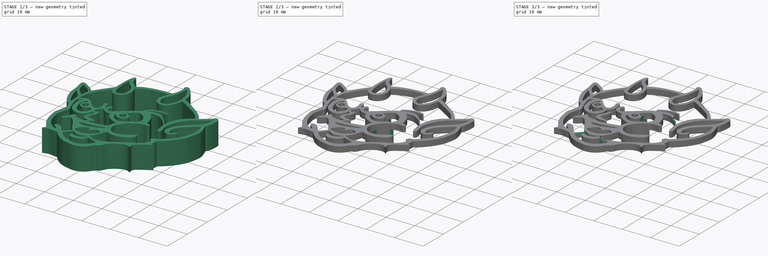
[diagram: build sequence overview — one tinted view per stage of 3, left to right]
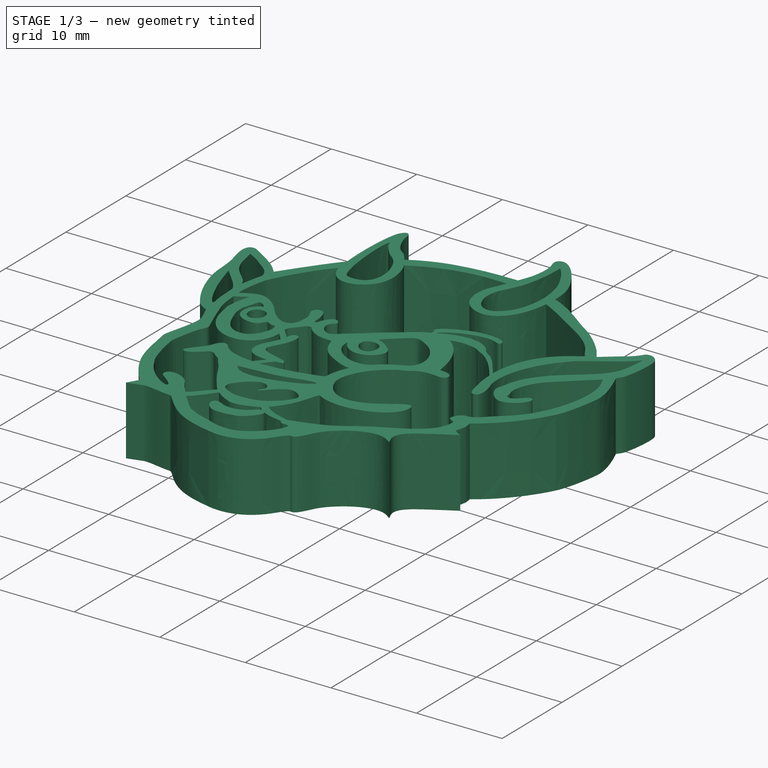
[diagram: stage 1 of 3 — iso view after this stage's code; geometry added in this stage tinted green]
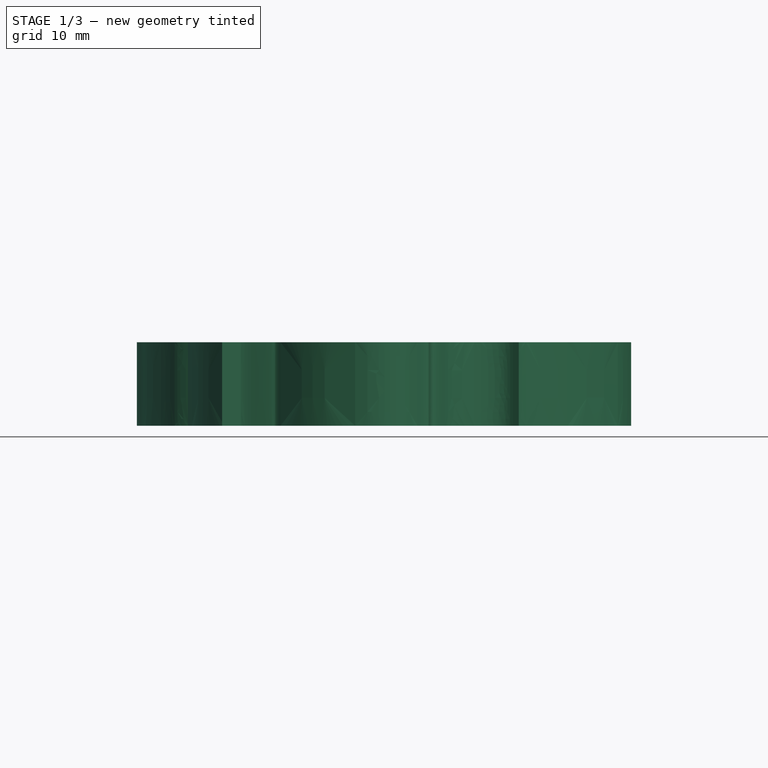
[diagram: stage 1 of 3 — front view after this stage's code; geometry added in this stage tinted green]
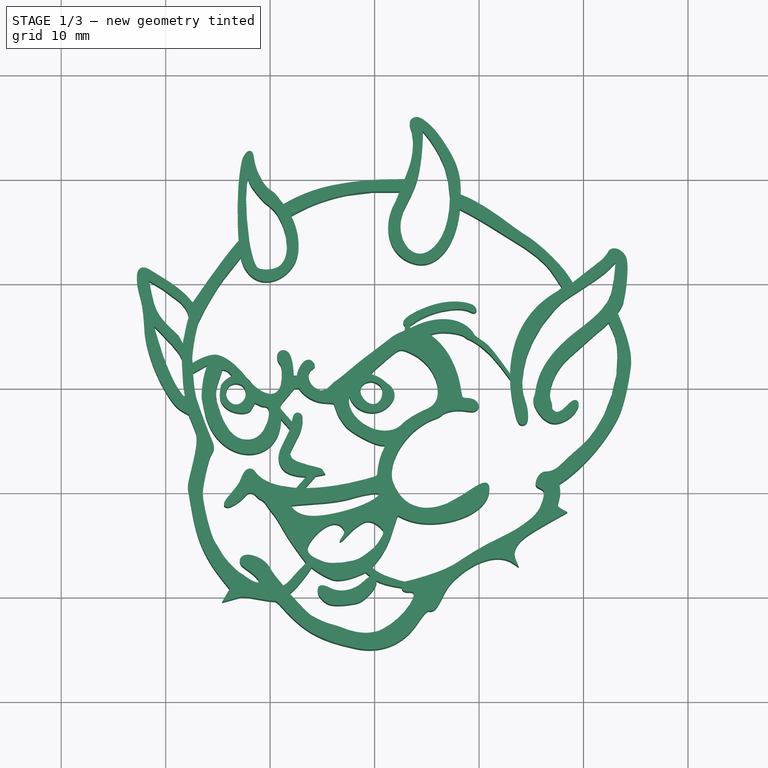
[diagram: stage 1 of 3 — top view after this stage's code; geometry added in this stage tinted green]
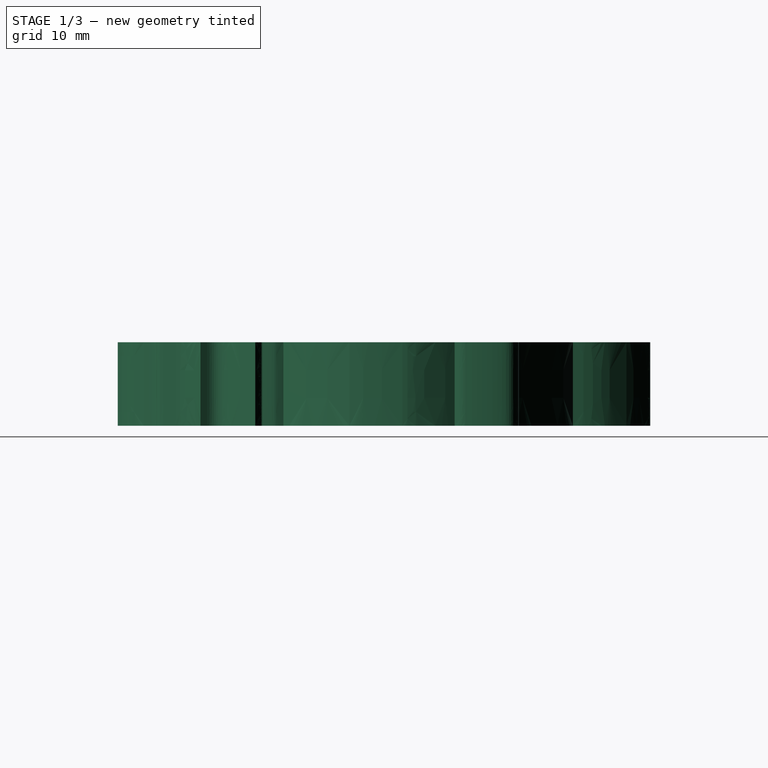
[diagram: stage 1 of 3 — right view after this stage's code; geometry added in this stage tinted green]
FCSTD DOCUMENT  (FreeCAD 0.22R37668 (Git))
Label: devil
License: Creative Commons Attribution-ShareAlike 3.0
LicenseURL: https://creativecommons.org/licenses/by-sa/3.0/
objects: Part::Feature×18, Sketcher::SketchObject×3, PartDesign::Pocket×3, Part::MultiFuse×1, Part::Cut×1, Part::Extrusion×1, PartDesign::FeatureBase×1, PartDesign::Body×1
note: 32 computed .brp shape members not serialized (recipe doc carries the construction recipe); baked Part::Feature solids carry a one-line shape summary decoded from their .brp

FEATURE [Part::Feature] path2
  shape: bbox 8.083 x 7 x 2.242e-07 mm, 1 faces, 0 solids (baked)
FEATURE [Part::Feature] path1
  Placement = pos=(55,-40,0) rot=(0,0,1;0rad)
  shape: bbox 59.62 x 65.19 x 2e-07 mm, 0 faces, 0 solids (baked)
FEATURE [Part::Feature] path17
  shape: bbox 47.59 x 51.36 x 2e-07 mm, 1 faces, 0 solids (baked)
FEATURE [Part::Feature] path018
  shape: bbox 4.959 x 11.77 x 2e-07 mm, 1 faces, 0 solids (baked)
FEATURE [Part::Feature] path019
  shape: bbox 3.98 x 8.726 x 2e-07 mm, 1 faces, 0 solids (baked)
FEATURE [Part::Feature] path020
  shape: bbox 35.43 x 19.38 x 2e-07 mm, 1 faces, 0 solids (baked)
FEATURE [Part::Feature] path021
  shape: bbox 23.72 x 30.57 x 2e-07 mm, 1 faces, 0 solids (baked)
FEATURE [Part::Feature] path022
  shape: bbox 3.784 x 5.981 x 2e-07 mm, 1 faces, 0 solids (baked)
FEATURE [Part::Feature] path023
  shape: bbox 3.277 x 7.271 x 2e-07 mm, 1 faces, 0 solids (baked)
FEATURE [Part::Feature] path024
  shape: bbox 8.642 x 7.9 x 2e-07 mm, 1 faces, 0 solids (baked)
FEATURE [Part::Feature] path025
  shape: bbox 10.85 x 21.1 x 2e-07 mm, 1 faces, 0 solids (baked)
FEATURE [Part::Feature] path026
  shape: bbox 5.285 x 6.958 x 2e-07 mm, 1 faces, 0 solids (baked)
FEATURE [Part::Feature] path027
  shape: bbox 2.209 x 2.271 x 2e-07 mm, 1 faces, 0 solids (baked)
FEATURE [Part::Feature] path028
  shape: bbox 1.875 x 2.027 x 2e-07 mm, 1 faces, 0 solids (baked)
FEATURE [Part::Feature] path029
  shape: bbox 10 x 9.583 x 2e-07 mm, 1 faces, 0 solids (baked)
FEATURE [Part::Feature] path030
  shape: bbox 8.489 x 2.222 x 2e-07 mm, 1 faces, 0 solids (baked)
FEATURE [Part::Feature] path031
  shape: bbox 7.297 x 4.078 x 2e-07 mm, 1 faces, 0 solids (baked)
FEATURE [Part::Feature] path032
  shape: bbox 11.88 x 6.411 x 2e-07 mm, 1 faces, 0 solids (baked)
FEATURE [Part::MultiFuse] Fusion
  Shapes = -> [path032,path031,path030,path029,path028,path027,path026,path025,path024,path023,path022,path021,path020,path019,path018]
FEATURE [Part::Cut] Cut
  Base = -> path17
  Tool = -> Fusion
FEATURE [Part::Extrusion] Extrude
  Base = -> Cut
  Dir = (0,0,1)
  DirMode = 0
  FaceMakerClass = Part::FaceMakerBullseye
  FaceMakerMode = 3
  LengthFwd = 8
  LengthRev = 0
  Solid = false
  Symmetric = false
FEATURE [PartDesign::FeatureBase] BaseFeature
  BaseFeature = -> Extrude
  Suppressed = false
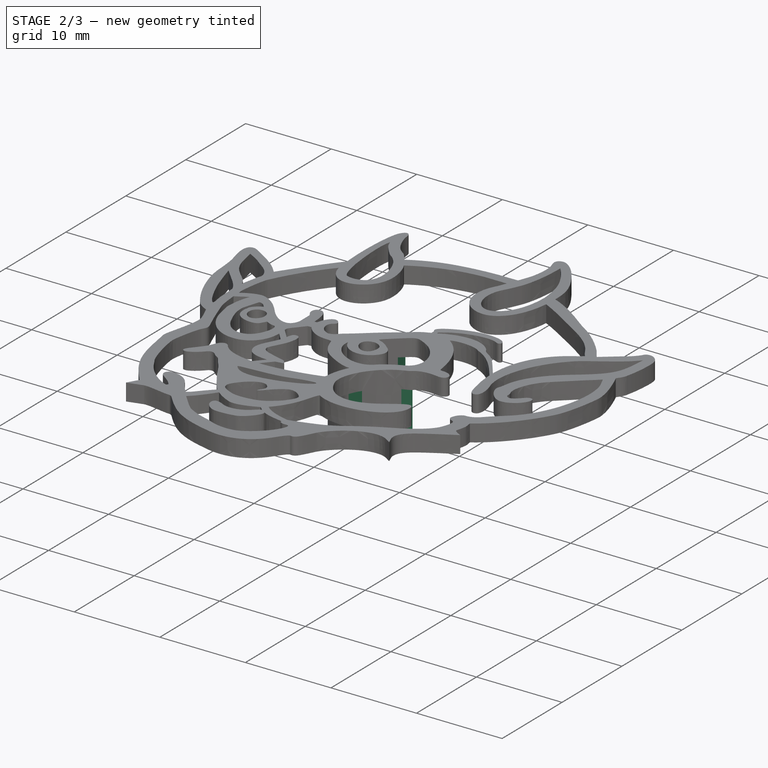
[diagram: stage 2 of 3 — iso view after this stage's code; geometry added in this stage tinted green]
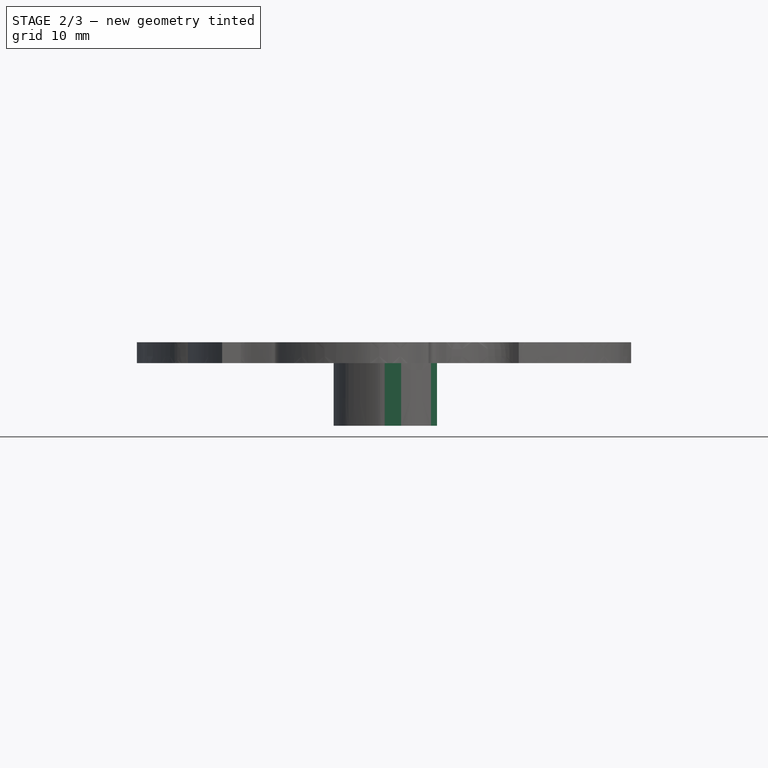
[diagram: stage 2 of 3 — front view after this stage's code; geometry added in this stage tinted green]
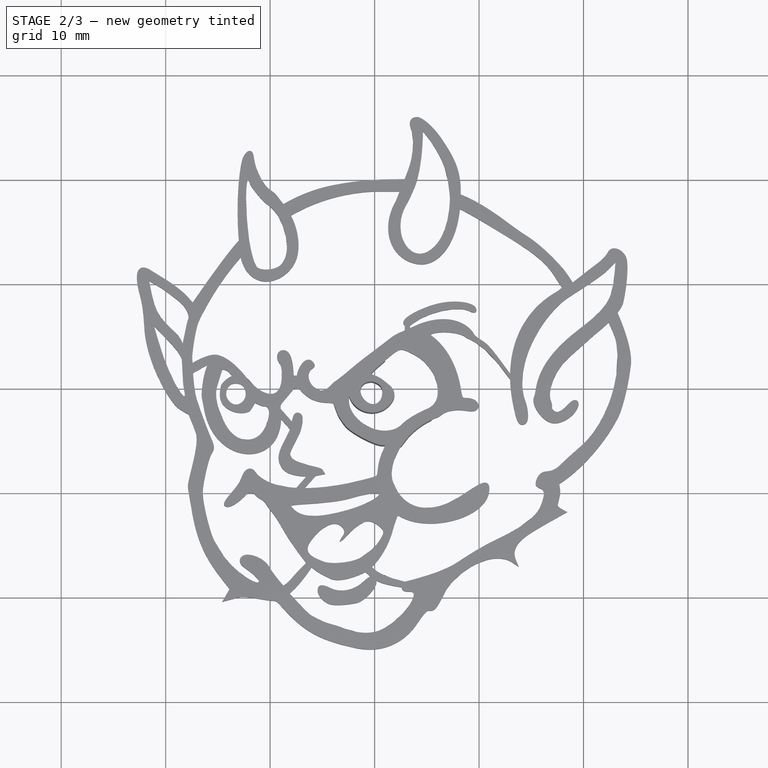
[diagram: stage 2 of 3 — top view after this stage's code; geometry added in this stage tinted green]
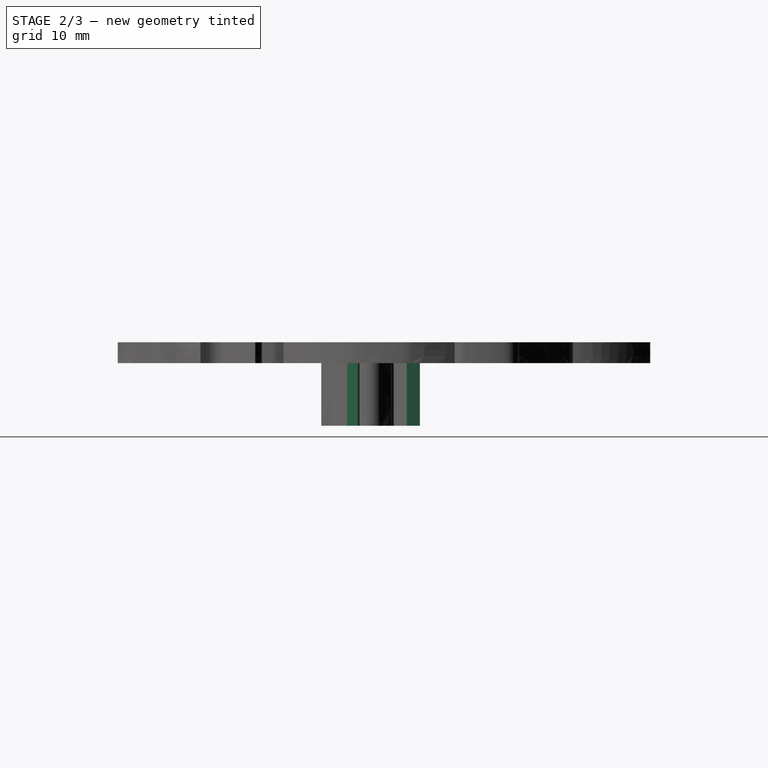
[diagram: stage 2 of 3 — right view after this stage's code; geometry added in this stage tinted green]
FEATURE [Sketcher::SketchObject] Sketch
  AttachmentOffset = pos=(31,-31,6) rot=(0,0,1;0rad)
  AttachmentSupport = -> [XY_Plane]
  FullyConstrained = false
  MapMode = 5
  Placement = pos=(31,-31,6) rot=(0,0,1;0rad)
  Support = -> [XY_Plane]
  sketch-geometry (14):
    g0: Circle CenterX=0 CenterY=0 CenterZ=0 NormalX=0 NormalY=0 NormalZ=1 AngleXU=0 Radius=30
    g1: LineSegment StartX=-1.56676 StartY=-4.59502 StartZ=0 EndX=-4.92167 EndY=-2.95228 EndZ=0
    g2: LineSegment StartX=-4.92167 StartY=-2.95228 StartZ=0 EndX=-4.92167 EndY=0.941894 EndZ=0
    g3: LineSegment StartX=-4.92167 StartY=0.941894 StartZ=0 EndX=-2.96146 EndY=4.33707 EndZ=0
    g4: LineSegment StartX=-2.96146 StartY=4.33707 StartZ=0 EndX=-1.91382 EndY=4.84499 EndZ=0
    g5: LineSegment StartX=-1.91382 StartY=4.84499 StartZ=0 EndX=0 EndY=4.84499 EndZ=0
    g6: LineSegment StartX=0 StartY=4.84499 StartZ=0 EndX=0 EndY=3.52616 EndZ=0
    g7: LineSegment StartX=0 StartY=3.52616 StartZ=0 EndX=2.25089 EndY=3.52616 EndZ=0
    g8: LineSegment StartX=3.73583 StartY=-3.24673 StartZ=0 EndX=2.11437 EndY=-4.59502 EndZ=0
    g9: LineSegment StartX=2.11437 StartY=-4.59502 StartZ=0 EndX=-1.56676 EndY=-4.59502 EndZ=0
    g10: LineSegment StartX=3.82308 StartY=-0.840063 StartZ=0 EndX=4.97871 EndY=-1.094 EndZ=0
    g11: LineSegment StartX=4.97871 StartY=-1.094 StartZ=0 EndX=3.73583 EndY=-3.24673 EndZ=0
    g12: LineSegment StartX=2.25089 StartY=3.52616 StartZ=0 EndX=4.34898 EndY=0.0708364 EndZ=0
    g13: LineSegment StartX=4.34898 StartY=0.0708364 StartZ=0 EndX=3.82308 EndY=-0.840063 EndZ=0
  constraints (25):
    c: Coincident(g3,g4)
    c: Coincident(g7,g12)
    c: Coincident(g13,g10)
    c: Coincident(g11,g8)
    c: Diameter(g0) = 60
    c: Coincident(g0,g-1)
    c: Coincident(g1,g2)
    c: Coincident(g2,g3)
    c: Coincident(g4,g5)
    c: Coincident(g5,g6)
    c: Coincident(g6,g7)
    c: Coincident(g8,g9)
    c: Coincident(g10,g11)
    c: Coincident(g12,g13)
    c: Horizontal(g9)
    c: PointOnObject(g0,g10)
    c: Angle(g11) = -2.0944
    c: Parallel(g11,g13)
    c: Horizontal(g7)
    c: Vertical(g6)
    c: PointOnObject(g5,g-2)
    c: Horizontal(g5)
    c: Parallel(g3,g11)
    c: Vertical(g2)
    c: Coincident(g9,g1)
FEATURE [PartDesign::Pocket] Pocket
  BaseFeature = -> BaseFeature
  Direction = (0,0,-1)
  Length = 5
  Length2 = 5
  Profile = -> Sketch
  ReferenceAxis = -> Sketch [N_Axis]
  Refine = true
  Suppressed = false
  Type = 1
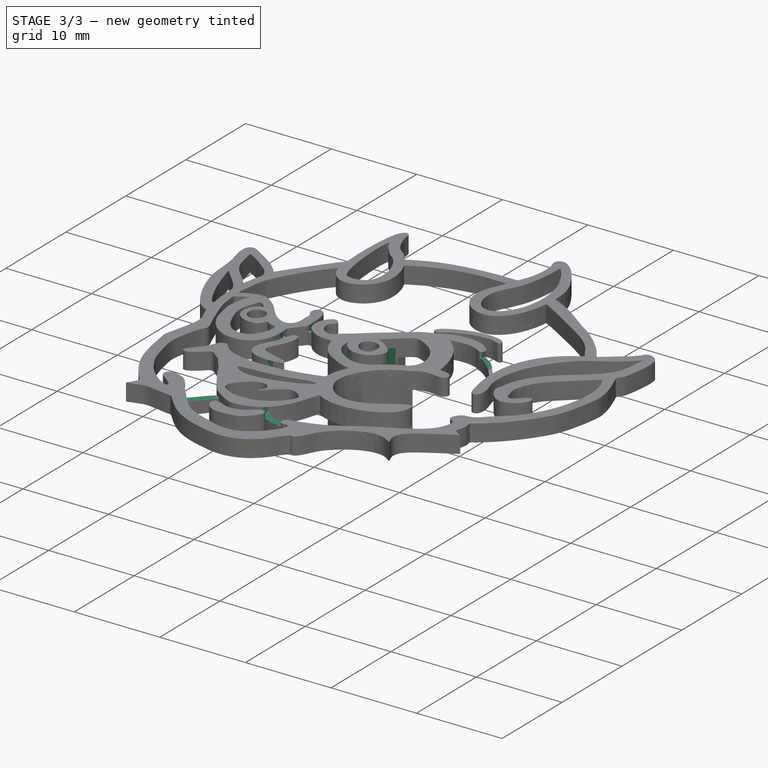
[diagram: stage 3 of 3 — iso view after this stage's code; geometry added in this stage tinted green]
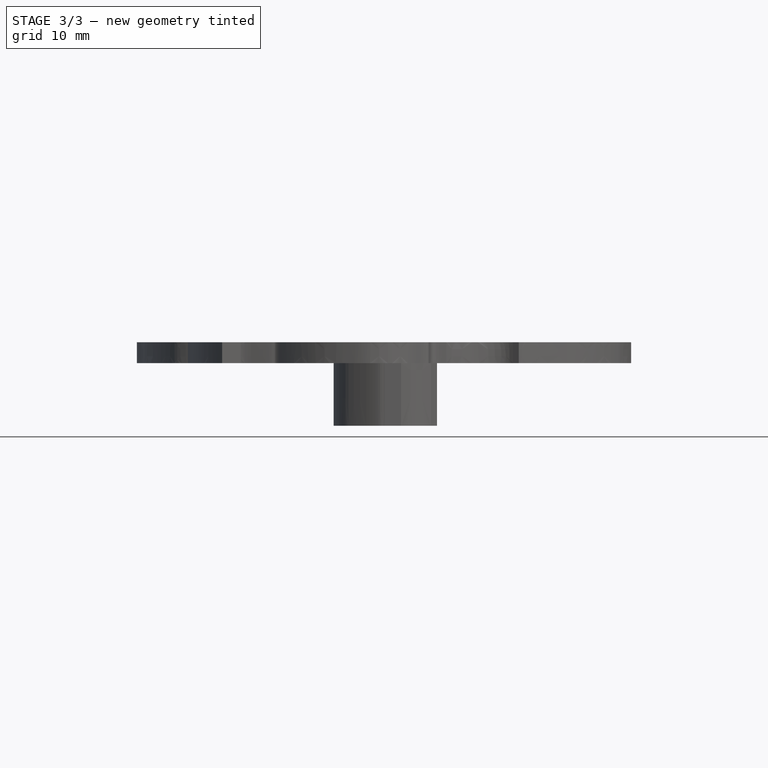
[diagram: stage 3 of 3 — front view after this stage's code; geometry added in this stage tinted green]
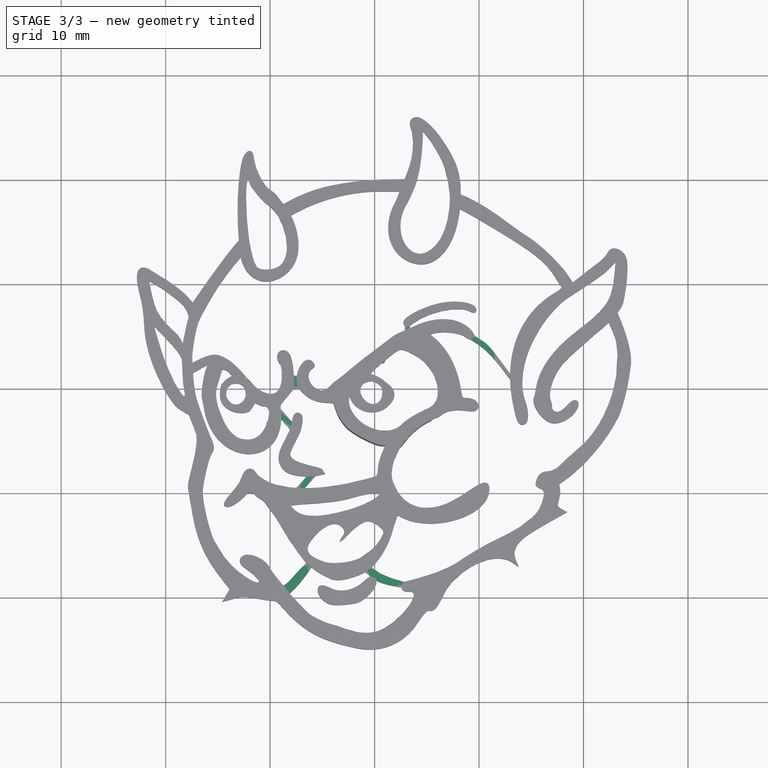
[diagram: stage 3 of 3 — top view after this stage's code; geometry added in this stage tinted green]
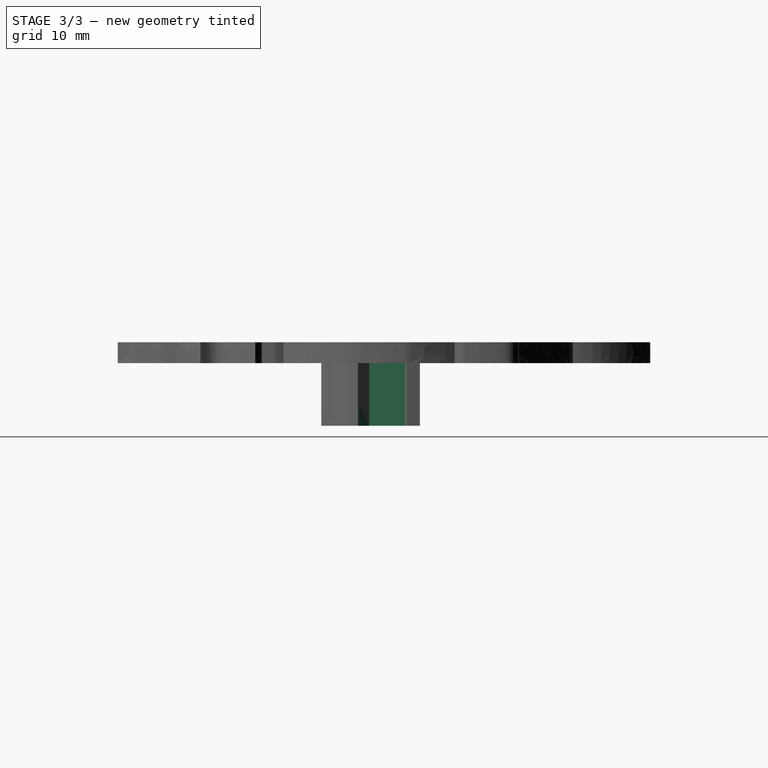
[diagram: stage 3 of 3 — right view after this stage's code; geometry added in this stage tinted green]
FEATURE [Sketcher::SketchObject] Sketch001
  AttachmentOffset = pos=(31,-31,7) rot=(0,0,1;0rad)
  AttachmentSupport = -> [XY_Plane]
  FullyConstrained = true
  MapMode = 5
  Placement = pos=(31,-31,7) rot=(0,0,1;0rad)
  Support = -> [XY_Plane]
  sketch-geometry (7):
    g0: LineSegment StartX=1.99186 StartY=-3.45 StartZ=0 EndX=3.98372 EndY=0 EndZ=0
    g1: LineSegment StartX=3.98372 StartY=0 StartZ=0 EndX=1.99186 EndY=3.45 EndZ=0
    g2: LineSegment StartX=1.99186 StartY=3.45 StartZ=0 EndX=-1.99186 EndY=3.45 EndZ=0
    g3: LineSegment StartX=-1.99186 StartY=3.45 StartZ=0 EndX=-3.98372 EndY=0 EndZ=0
    g4: LineSegment StartX=-3.98372 StartY=0 StartZ=0 EndX=-1.99186 EndY=-3.45 EndZ=0
    g5: LineSegment StartX=-1.99186 StartY=-3.45 StartZ=0 EndX=1.99186 EndY=-3.45 EndZ=0
    g6: Circle CenterX=0 CenterY=0 CenterZ=0 NormalX=0 NormalY=0 NormalZ=1 AngleXU=0 Radius=3.98372
  constraints (16):
    c: Coincident(g0,g1)
    c: Coincident(g1,g2)
    c: Coincident(g2,g3)
    c: Coincident(g3,g4)
    c: Coincident(g4,g5)
    c: Coincident(g5,g0)
    c: Equal(g0, g1-g5) x5
    c: PointOnObject(g0,g6)
    c: PointOnObject(g1,g6)
    c: PointOnObject(g2,g6)
    c: PointOnObject(g3,g6)
    c: PointOnObject(g4,g6)
    c: PointOnObject(g5,g6)
    c: Coincident(g6,g-1)
    c: Horizontal(g5)
    c: DistanceY(g0,g1) = 6.9
FEATURE [PartDesign::Pocket] Pocket001
  BaseFeature = -> Pocket
  Direction = (0,0,-1)
  Length = 5
  Length2 = 5
  Profile = -> Sketch001
  ReferenceAxis = -> Sketch001 [N_Axis]
  Refine = true
  Suppressed = false
  Type = 1
FEATURE [Sketcher::SketchObject] Sketch002
  AttachmentOffset = pos=(31,31,7.4) rot=(1,0,0;3.14159rad)
  AttachmentSupport = -> [XY_Plane]
  FullyConstrained = false
  MapMode = 5
  Placement = pos=(31,31,7.4) rot=(1,0,0;3.14159rad)
  Support = -> [XY_Plane]
  sketch-geometry (63):
    g0: LineSegment StartX=1.85192 StartY=55.5098 StartZ=0 EndX=2.4517 EndY=55.2555 EndZ=0
    g1: LineSegment StartX=2.4517 StartY=55.2555 StartZ=0 EndX=2.4517 EndY=55.0469 EndZ=0
    g2: LineSegment StartX=2.4517 StartY=55.0469 StartZ=0 EndX=2.20396 EndY=55.0991 EndZ=0
    g3: LineSegment StartX=2.20396 StartY=55.0991 StartZ=0 EndX=1.97578 EndY=55.1121 EndZ=0
    g4: LineSegment StartX=1.97578 StartY=55.1121 StartZ=0 EndX=1.78672 EndY=55.0208 EndZ=0
    g5: LineSegment StartX=1.78672 StartY=55.0208 StartZ=0 EndX=1.85192 EndY=55.5098 EndZ=0
    g6: LineSegment StartX=8.03591 StartY=56.3915 StartZ=0 EndX=8.19469 EndY=56.3766 EndZ=0
    g7: LineSegment StartX=8.19469 StartY=56.3766 StartZ=0 EndX=8.31294 EndY=56.3274 EndZ=0
    g8: LineSegment StartX=8.31294 StartY=56.3274 StartZ=0 EndX=8.4509 EndY=56.2091 EndZ=0
    g9: LineSegment StartX=8.4509 StartY=56.2091 StartZ=0 EndX=8.49032 EndY=56.0317 EndZ=0
    g10: LineSegment StartX=8.49032 StartY=56.0317 StartZ=0 EndX=8.49032 EndY=55.9086 EndZ=0
    g11: LineSegment StartX=8.49032 StartY=55.9086 StartZ=0 EndX=8.38192 EndY=55.5045 EndZ=0
    g12: LineSegment StartX=8.38192 StartY=55.5045 StartZ=0 EndX=10.9112 EndY=57.5121 EndZ=0
    g13: LineSegment StartX=10.9112 StartY=57.5121 StartZ=0 EndX=11.9557 EndY=59.5224 EndZ=0
    g14: LineSegment StartX=11.9557 StartY=59.5224 StartZ=0 EndX=11.9557 EndY=60.2516 EndZ=0
    g15: LineSegment StartX=11.9557 StartY=60.2516 StartZ=0 EndX=8.03591 EndY=56.3915 EndZ=0
    g16: LineSegment StartX=-8.90032 StartY=61.4344 StartZ=0 EndX=-8.76068 EndY=61.1325 EndZ=0
    g17: LineSegment StartX=-8.76068 StartY=61.1325 StartZ=0 EndX=-8.7003 EndY=60.8721 EndZ=0
    g18: LineSegment StartX=-8.7003 StartY=60.8721 StartZ=0 EndX=-8.68143 EndY=60.5325 EndZ=0
    g19: LineSegment StartX=-8.68143 StartY=60.5325 StartZ=0 EndX=-8.73804 EndY=59.706 EndZ=0
    g20: LineSegment StartX=-8.73804 StartY=59.706 StartZ=0 EndX=-8.43235 EndY=59.706 EndZ=0
    g21: LineSegment StartX=-8.43235 StartY=59.706 StartZ=0 EndX=-8.47009 EndY=59.9362 EndZ=0
    g22: LineSegment StartX=-8.47009 StartY=59.9362 StartZ=0 EndX=-8.48896 EndY=60.2494 EndZ=0
    g23: LineSegment StartX=-8.48896 StartY=60.2494 StartZ=0 EndX=-8.45122 EndY=60.4985 EndZ=0
    g24: LineSegment StartX=-8.45122 StartY=60.4985 StartZ=0 EndX=-8.36065 EndY=60.8344 EndZ=0
    g25: LineSegment StartX=-8.36065 StartY=60.8344 StartZ=0 EndX=-8.10779 EndY=61.4005 EndZ=0
    g26: LineSegment StartX=-8.10779 StartY=61.4005 StartZ=0 EndX=-8.90032 EndY=61.4344 EndZ=0
    g27: LineSegment StartX=-9.98836 StartY=63.0158 StartZ=0 EndX=-9.95097 EndY=63.3943 EndZ=0
    g28: LineSegment StartX=-9.95097 StartY=63.3943 StartZ=0 EndX=-9.93608 EndY=63.7325 EndZ=0
    g29: LineSegment StartX=-9.93608 StartY=63.7325 StartZ=0 EndX=-9.93821 EndY=64.0516 EndZ=0
    g30: LineSegment StartX=-9.93821 StartY=64.0516 StartZ=0 EndX=-9.12362 EndY=64.992 EndZ=0
    g31: LineSegment StartX=-9.12362 StartY=64.992 StartZ=0 EndX=-9.00123 EndY=64.6784 EndZ=0
    g32: LineSegment StartX=-9.00123 StartY=64.6784 StartZ=0 EndX=-8.92092 EndY=64.3074 EndZ=0
    g33: LineSegment StartX=-8.92092 StartY=64.3074 StartZ=0 EndX=-8.91327 EndY=64.1315 EndZ=0
    g34: LineSegment StartX=-8.91327 StartY=64.1315 StartZ=0 EndX=-9.98836 EndY=63.0158 EndZ=0
    g35: LineSegment StartX=-8.51641 StartY=70.5763 StartZ=0 EndX=-8.24985 EndY=70.6048 EndZ=0
    g36: LineSegment StartX=-8.24985 StartY=70.6048 StartZ=0 EndX=-7.91348 EndY=70.6207 EndZ=0
    g37: LineSegment StartX=-7.91348 StartY=70.6207 StartZ=0 EndX=-7.64375 EndY=70.608 EndZ=0
    g38: LineSegment StartX=-7.64375 StartY=70.608 StartZ=0 EndX=-6.57605 EndY=69.4402 EndZ=0
    g39: LineSegment StartX=-6.57605 StartY=69.4402 StartZ=0 EndX=-6.84546 EndY=69.4855 EndZ=0
    g40: LineSegment StartX=-6.84546 StartY=69.4855 StartZ=0 EndX=-7.26574 EndY=69.5113 EndZ=0
    g41: LineSegment StartX=-7.26574 StartY=69.5113 StartZ=0 EndX=-7.59765 EndY=69.5092 EndZ=0
    g42: LineSegment StartX=-7.59765 StartY=69.5092 StartZ=0 EndX=-8.51641 EndY=70.5763 EndZ=0
    g43: LineSegment StartX=-9.7623 StartY=79.889 StartZ=0 EndX=-9.09326 EndY=80.7382 EndZ=0
    g44: LineSegment StartX=-9.09326 StartY=80.7382 StartZ=0 EndX=-8.01894 EndY=79.8054 EndZ=0
    g45: LineSegment StartX=-8.01894 StartY=79.8054 StartZ=0 EndX=-7.00252 EndY=78.2614 EndZ=0
    g46: LineSegment StartX=-7.00252 StartY=78.2614 StartZ=0 EndX=-7.34991 EndY=77.9848 EndZ=0
    g47: LineSegment StartX=-7.34991 StartY=77.9848 StartZ=0 EndX=-7.71016 EndY=77.6374 EndZ=0
    g48: LineSegment StartX=-7.71016 StartY=77.6374 StartZ=0 EndX=-9.7623 EndY=79.889 EndZ=0
    g49: LineSegment StartX=-1.96837 StartY=78.7232 StartZ=0 EndX=-1.67245 EndY=78.5624 EndZ=0
    g50: LineSegment StartX=-1.67245 StartY=78.5624 StartZ=0 EndX=-1.41513 EndY=78.3243 EndZ=0
    g51: LineSegment StartX=-1.41513 StartY=78.3243 StartZ=0 EndX=-1.02271 EndY=77.9769 EndZ=0
    g52: LineSegment StartX=-1.02271 StartY=77.9769 StartZ=0 EndX=2.05228 EndY=79.4501 EndZ=0
    g53: LineSegment StartX=2.05228 StartY=79.4501 StartZ=0 EndX=1.76279 EndY=79.6624 EndZ=0
    g54: LineSegment StartX=1.76279 StartY=79.6624 StartZ=0 EndX=1.61483 EndY=79.8876 EndZ=0
    g55: LineSegment StartX=1.61483 StartY=79.8876 StartZ=0 EndX=1.56337 EndY=80.2542 EndZ=0
    g56: LineSegment StartX=1.56337 StartY=80.2542 StartZ=0 EndX=-0.739656 EndY=79.746 EndZ=0
    g57: LineSegment StartX=-0.739656 StartY=79.746 StartZ=0 EndX=-0.855452 EndY=79.3601 EndZ=0
    g58: LineSegment StartX=-0.855452 StartY=79.3601 StartZ=0 EndX=-0.945515 EndY=79.2636 EndZ=0
    g59: LineSegment StartX=-0.945515 StartY=79.2636 StartZ=0 EndX=-1.06774 EndY=79.1735 EndZ=0
    g60: LineSegment StartX=-1.06774 StartY=79.1735 StartZ=0 EndX=-1.22857 EndY=79.1092 EndZ=0
    g61: LineSegment StartX=-1.22857 StartY=79.1092 StartZ=0 EndX=-1.60812 EndY=79.077 EndZ=0
    g62: LineSegment StartX=-1.60812 StartY=79.077 StartZ=0 EndX=-1.96837 EndY=78.7232 EndZ=0
  constraints (67):
    c: Coincident(g0,g1)
    c: Vertical(g1)
    c: Coincident(g1,g2)
    c: Coincident(g2,g3)
    c: Coincident(g3,g4)
    c: Coincident(g4,g5)
    c: Coincident(g5,g0)
    c: Coincident(g6,g7)
    c: Coincident(g7,g8)
    c: Coincident(g8,g9)
    c: Coincident(g9,g10)
    c: Vertical(g10)
    c: Coincident(g10,g11)
    c: Coincident(g11,g12)
    c: Coincident(g12,g13)
    c: Coincident(g13,g14)
    c: Vertical(g14)
    c: Coincident(g14,g15)
    c: Coincident(g15,g6)
    c: Coincident(g16,g17)
    c: Coincident(g17,g18)
    c: Coincident(g18,g19)
    c: Coincident(g19,g20)
    c: Horizontal(g20)
    c: Coincident(g20,g21)
    c: Coincident(g21,g22)
    c: Coincident(g22,g23)
    c: Coincident(g23,g24)
    c: Coincident(g24,g25)
    c: Coincident(g25,g26)
    c: Coincident(g26,g16)
    c: Coincident(g27,g28)
    c: Coincident(g28,g29)
    c: Coincident(g29,g30)
    c: Coincident(g30,g31)
    c: Coincident(g31,g32)
    c: Coincident(g32,g33)
    c: Coincident(g33,g34)
    c: Coincident(g34,g27)
    c: Coincident(g35,g36)
    c: Coincident(g36,g37)
    c: Coincident(g37,g38)
    c: Coincident(g38,g39)
    c: Coincident(g39,g40)
    c: Coincident(g40,g41)
    c: Coincident(g41,g42)
    c: Coincident(g42,g35)
    c: Coincident(g43,g44)
    c: Coincident(g44,g45)
    c: Coincident(g45,g46)
    c: Coincident(g46,g47)
    c: Coincident(g47,g48)
    c: Coincident(g48,g43)
    c: Coincident(g49,g50)
    c: Coincident(g50,g51)
    c: Coincident(g51,g52)
    c: Coincident(g52,g53)
    c: Coincident(g53,g54)
    c: Coincident(g54,g55)
    c: Coincident(g55,g56)
    c: Coincident(g56,g57)
    c: Coincident(g57,g58)
    c: Coincident(g58,g59)
    c: Coincident(g59,g60)
    c: Coincident(g60,g61)
    c: Coincident(g61,g62)
    c: Coincident(g62,g49)
FEATURE [PartDesign::Pocket] Pocket002
  BaseFeature = -> Pocket001
  Direction = (0,1e-16,1)
  Length = 5
  Length2 = 5
  Profile = -> Sketch002
  ReferenceAxis = -> Sketch002 [N_Axis]
  Suppressed = false
  Type = 1
FEATURE [PartDesign::Body] Body  label="Head"
  AllowCompound = false
  BaseFeature = -> Extrude
  Group = -> [BaseFeature,Sketch,Pocket,Sketch001,Pocket001,Sketch002,Pocket002]
  Origin = -> Origin
  Tip = -> Pocket002
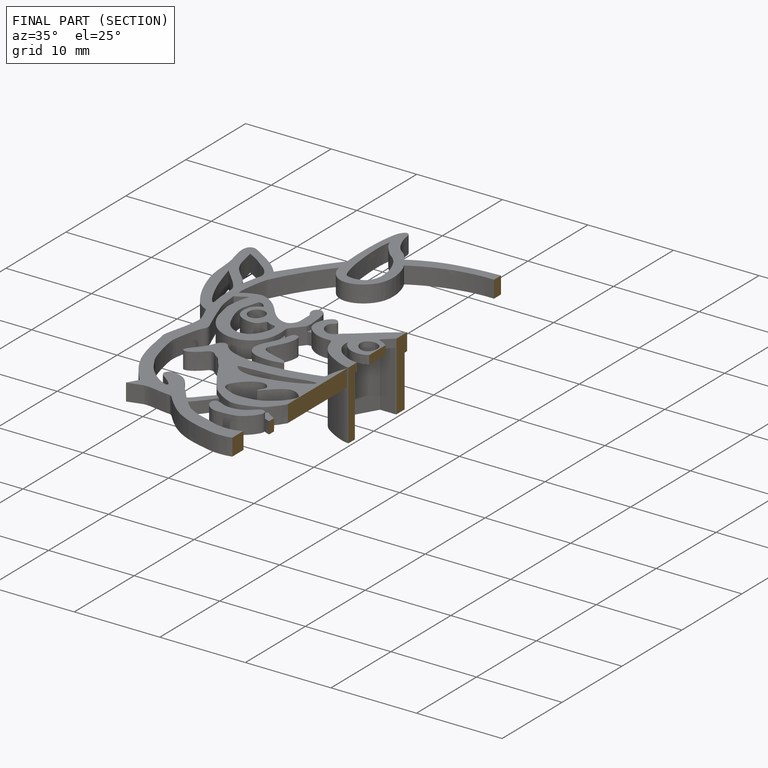
[diagram: finished part — half-section view (interior)]
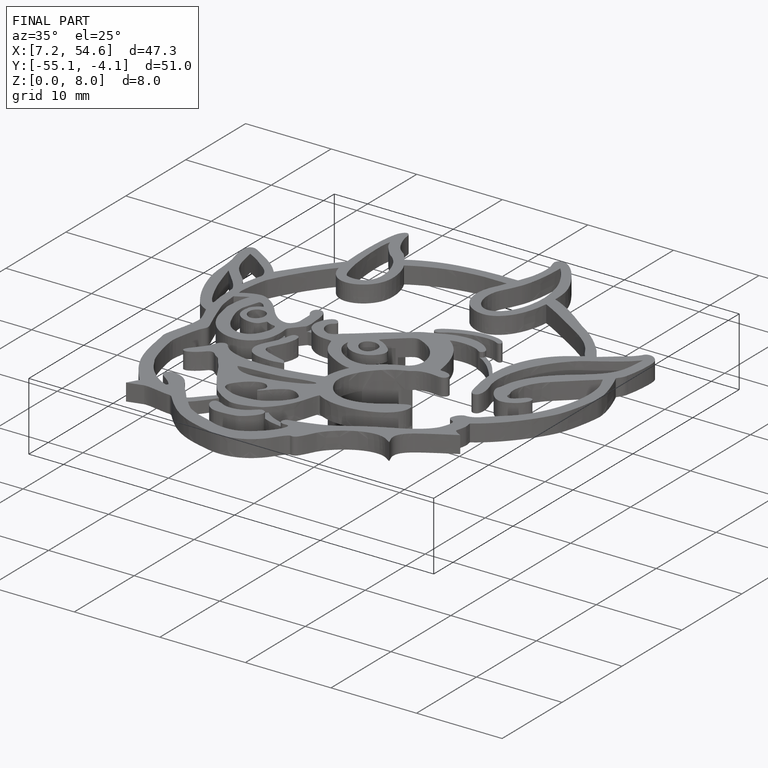
[diagram: finished part — iso view with bounding-box wireframe]
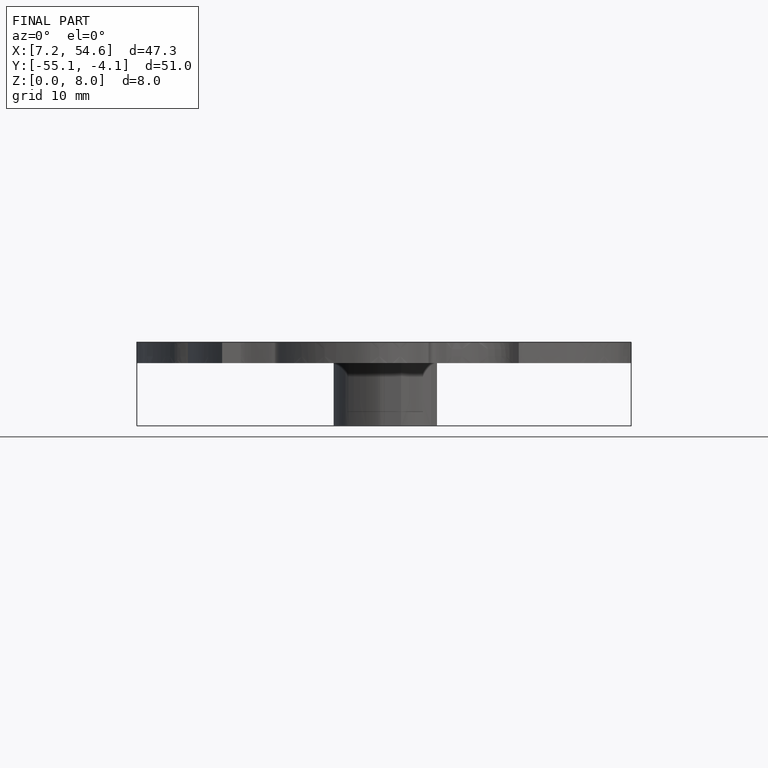
[diagram: finished part — front view with bounding-box wireframe]
